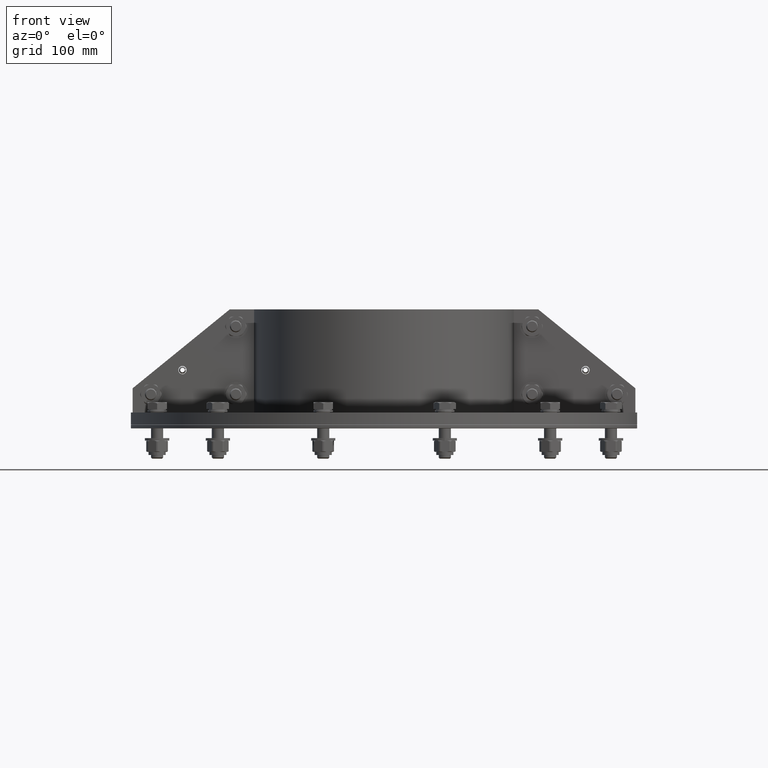
[diagram: clean part render]
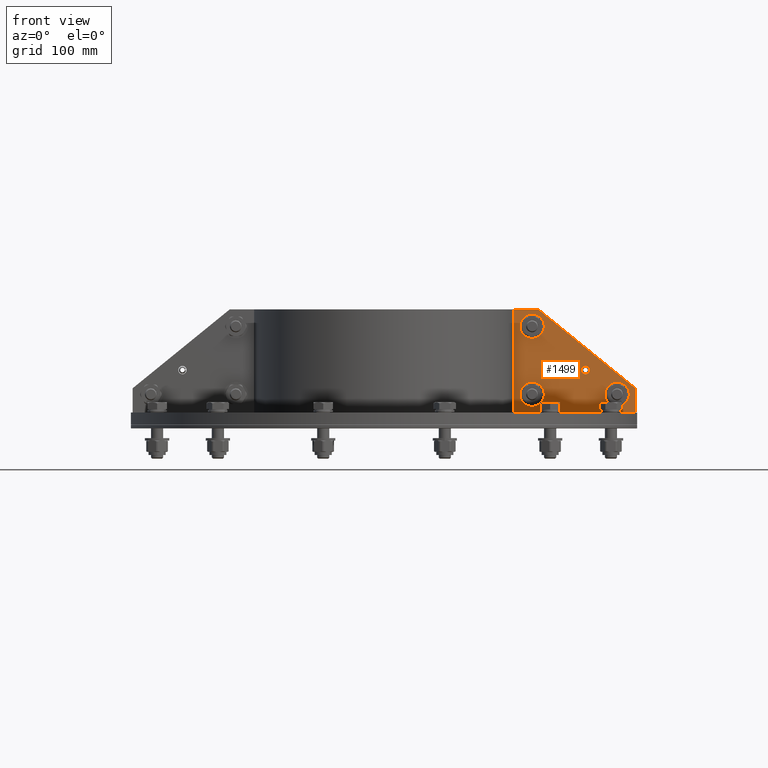
[diagram: same view with one face highlighted and labeled with its STEP entity id]
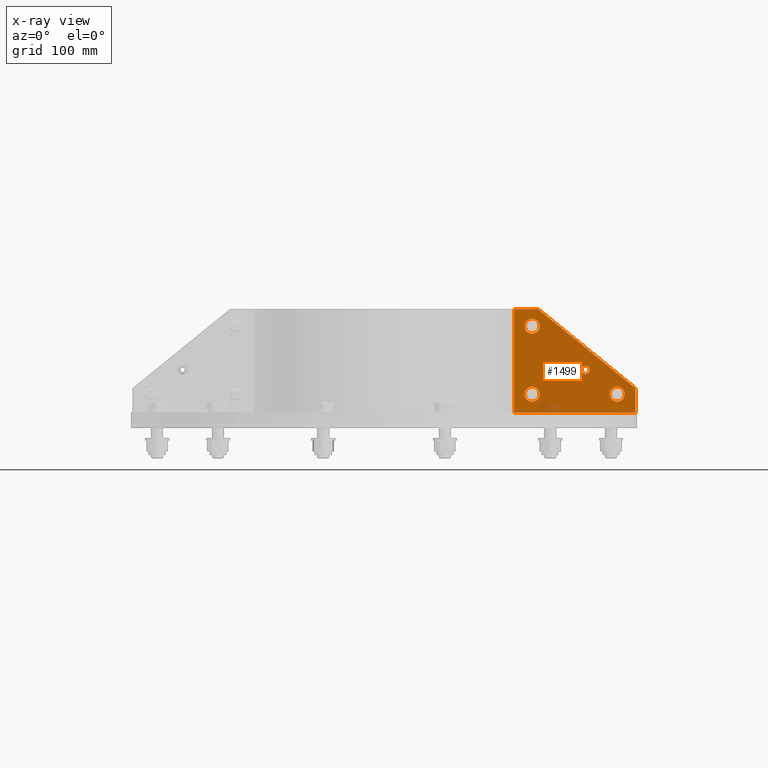
[diagram: x-ray of the same camera — body ghosted, the highlighted face saturated]
A machine part, front view. The second image highlights one B-rep face of the part: STEP entity #1499.
The next image is the same camera in x-ray: the body ghosted, the highlighted face saturated — about 2% of this face is hidden behind the body in this view.
In plain terms, the highlighted planar face has unit normal (0, -1, 0).
Its self-contained STEP definition (entity closure, byte-faithful):
#1199=CARTESIAN_POINT('',(21.150000000000002,71.0,5.0));
#1200=VERTEX_POINT('',#1199);
#1201=CARTESIAN_POINT('',(15.0,71.0,5.0));
#1202=DIRECTION('',(0.0,0.0,-1.0));
#1203=DIRECTION('',(-1.0,0.0,0.0));
#1204=AXIS2_PLACEMENT_3D('',#1201,#1202,#1203);
#1205=CIRCLE('',#1204,6.150000000000001);
#1206=EDGE_CURVE('',#1200,#1200,#1205,.T.);
#1227=CARTESIAN_POINT('',(91.150000000000006,15.000000000000002,5.0));
#1228=VERTEX_POINT('',#1227);
#1229=CARTESIAN_POINT('',(85.0,15.000000000000002,5.0));
#1230=DIRECTION('',(0.0,0.0,-1.0));
#1231=DIRECTION('',(-1.0,0.0,0.0));
#1232=AXIS2_PLACEMENT_3D('',#1229,#1230,#1231);
#1233=CIRCLE('',#1232,6.150000000000001);
#1234=EDGE_CURVE('',#1228,#1228,#1233,.T.);
#1255=CARTESIAN_POINT('',(21.150000000000002,15.000000000000002,5.0));
#1256=VERTEX_POINT('',#1255);
#1257=CARTESIAN_POINT('',(15.0,15.000000000000002,5.0));
#1258=DIRECTION('',(0.0,0.0,-1.0));
#1259=DIRECTION('',(-1.0,0.0,0.0));
#1260=AXIS2_PLACEMENT_3D('',#1257,#1258,#1259);
#1261=CIRCLE('',#1260,6.150000000000001);
#1262=EDGE_CURVE('',#1256,#1256,#1261,.T.);
#1283=CARTESIAN_POINT('',(62.350000000000001,35.0,5.0));
#1284=VERTEX_POINT('',#1283);
#1285=CARTESIAN_POINT('',(59.0,35.0,5.0));
#1286=DIRECTION('',(0.0,0.0,-1.0));
#1287=DIRECTION('',(-1.0,0.0,0.0));
#1288=AXIS2_PLACEMENT_3D('',#1285,#1286,#1287);
#1289=CIRCLE('',#1288,3.35);
#1290=EDGE_CURVE('',#1284,#1284,#1289,.T.);
#1360=CARTESIAN_POINT('',(0.0,85.0,5.0));
#1361=VERTEX_POINT('',#1360);
#1362=CARTESIAN_POINT('',(20.0,85.0,5.0));
#1363=VERTEX_POINT('',#1362);
#1364=CARTESIAN_POINT('',(0.0,85.0,5.0));
#1365=DIRECTION('',(1.0,0.0,0.0));
#1366=VECTOR('',#1365,20.0);
#1367=LINE('',#1364,#1366);
#1368=EDGE_CURVE('',#1361,#1363,#1367,.T.);
#1391=CARTESIAN_POINT('',(100.0,20.000000000000018,5.0));
#1392=VERTEX_POINT('',#1391);
#1393=CARTESIAN_POINT('',(20.0,85.0,5.0));
#1394=DIRECTION('',(0.776114000116266,-0.630592625094466,0.0));
#1395=VECTOR('',#1394,103.0776406404415);
#1396=LINE('',#1393,#1395);
#1397=EDGE_CURVE('',#1363,#1392,#1396,.T.);
#1415=CARTESIAN_POINT('',(100.0,1.836970E-014,5.0));
#1416=VERTEX_POINT('',#1415);
#1417=CARTESIAN_POINT('',(100.0,20.000000000000018,5.0));
#1418=DIRECTION('',(0.0,-1.0,0.0));
#1419=VECTOR('',#1418,20.0);
#1420=LINE('',#1417,#1419);
#1421=EDGE_CURVE('',#1392,#1416,#1420,.T.);
#1439=CARTESIAN_POINT('',(0.0,0.0,5.0));
#1440=VERTEX_POINT('',#1439);
#1441=CARTESIAN_POINT('',(100.0,1.836970E-014,5.0));
#1442=DIRECTION('',(-1.0,0.0,0.0));
#1443=VECTOR('',#1442,100.0);
#1444=LINE('',#1441,#1443);
#1445=EDGE_CURVE('',#1416,#1440,#1444,.T.);
#1463=CARTESIAN_POINT('',(0.0,0.0,5.0));
#1464=DIRECTION('',(0.0,1.0,0.0));
#1465=VECTOR('',#1464,85.0);
#1466=LINE('',#1463,#1465);
#1467=EDGE_CURVE('',#1440,#1361,#1466,.T.);
#1475=CARTESIAN_POINT('',(40.797228400869528,33.297228400869542,5.0));
#1476=DIRECTION('',(0.0,0.0,1.0));
#1477=DIRECTION('',(1.0,0.0,0.0));
#1478=AXIS2_PLACEMENT_3D('',#1475,#1476,#1477);
#1479=PLANE('',#1478);
#1480=ORIENTED_EDGE('',*,*,#1368,.F.);
#1481=ORIENTED_EDGE('',*,*,#1467,.F.);
#1482=ORIENTED_EDGE('',*,*,#1445,.F.);
#1483=ORIENTED_EDGE('',*,*,#1421,.F.);
#1484=ORIENTED_EDGE('',*,*,#1397,.F.);
#1485=EDGE_LOOP('',(#1480,#1481,#1482,#1483,#1484));
#1486=FACE_OUTER_BOUND('',#1485,.T.);
#1487=ORIENTED_EDGE('',*,*,#1206,.T.);
#1488=EDGE_LOOP('',(#1487));
#1489=FACE_BOUND('',#1488,.T.);
#1490=ORIENTED_EDGE('',*,*,#1234,.T.);
#1491=EDGE_LOOP('',(#1490));
#1492=FACE_BOUND('',#1491,.T.);
#1493=ORIENTED_EDGE('',*,*,#1262,.T.);
#1494=EDGE_LOOP('',(#1493));
#1495=FACE_BOUND('',#1494,.T.);
#1496=ORIENTED_EDGE('',*,*,#1290,.T.);
#1497=EDGE_LOOP('',(#1496));
#1498=FACE_BOUND('',#1497,.T.);
#1499=ADVANCED_FACE('',(#1486,#1489,#1492,#1495,#1498),#1479,.T.);